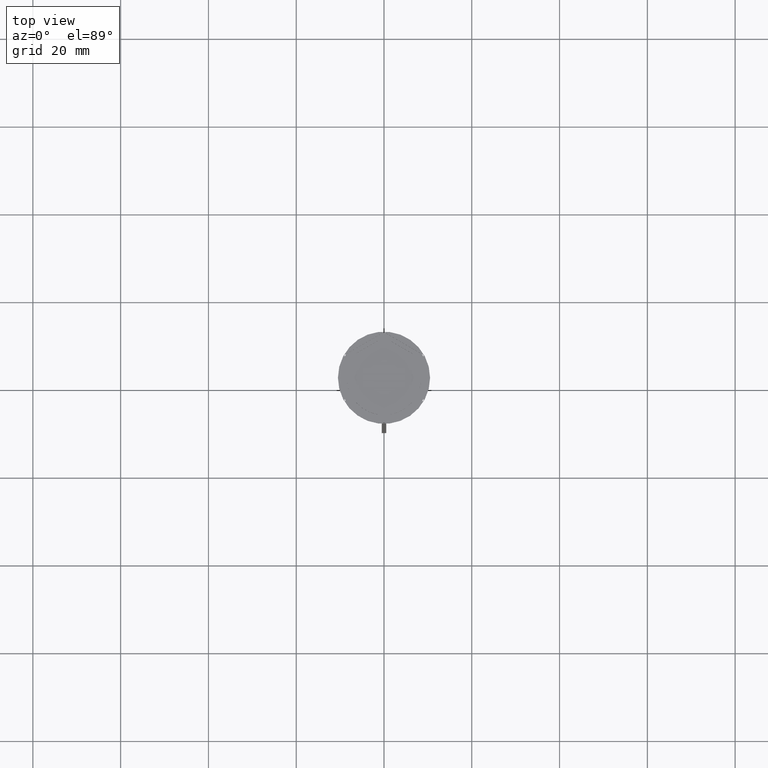
[diagram: clean part render]
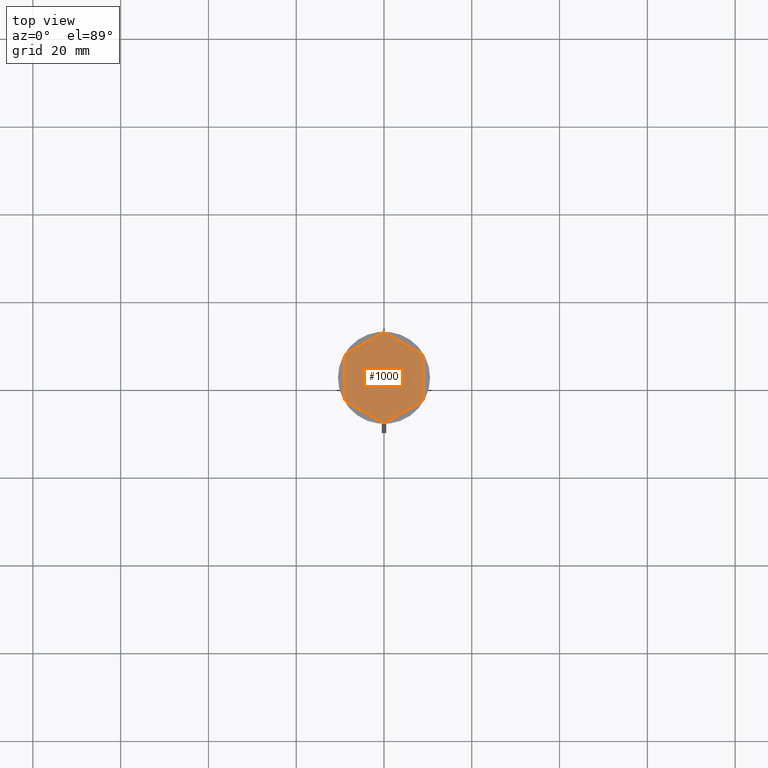
[diagram: same view with one face highlighted and labeled with its STEP entity id]
A machine part, top view. The second image highlights one B-rep face of the part: STEP entity #1000.
In plain terms, the highlighted planar face has unit normal (0, 0, 1).
Its self-contained STEP definition (entity closure, byte-faithful):
#4 = CARTESIAN_POINT ( 'NONE',  ( 0.000000000000000000, 0.000000000000000000, -1.000000000000000000 ) ) ;
#13 = DIRECTION ( 'NONE',  ( 1.000000000000000000, 0.000000000000000000, 0.000000000000000000 ) ) ;
#18 = EDGE_CURVE ( 'NONE', #811, #46, #150, .T. ) ;
#19 = DIRECTION ( 'NONE',  ( -0.8660254037844387076, -0.4999999999999998335, 0.000000000000000000 ) ) ;
#23 = DIRECTION ( 'NONE',  ( 1.000000000000000000, 0.000000000000000000, 0.000000000000000000 ) ) ;
#24 = CIRCLE ( 'NONE', #2146, 8.500000000000000000 ) ;
#30 = DIRECTION ( 'NONE',  ( 0.000000000000000000, 0.000000000000000000, 1.000000000000000000 ) ) ;
#33 = FACE_OUTER_BOUND ( 'NONE', #896, .T. ) ;
#39 = ORIENTED_EDGE ( 'NONE', *, *, #1545, .T. ) ;
#44 = VECTOR ( 'NONE', #1745, 1000.000000000000114 ) ;
#46 = VERTEX_POINT ( 'NONE', #130 ) ;
#47 = LINE ( 'NONE', #2400, #1637 ) ;
#60 = CARTESIAN_POINT ( 'NONE',  ( 0.000000000000000000, 0.000000000000000000, -1.000000000000000000 ) ) ;
#81 = EDGE_CURVE ( 'NONE', #1699, #2413, #805, .T. ) ;
#91 = DIRECTION ( 'NONE',  ( 1.000000000000000000, 8.881784197001252323E-16, 0.000000000000000000 ) ) ;
#112 = AXIS2_PLACEMENT_3D ( 'NONE', #1593, #2374, #815 ) ;
#118 = CARTESIAN_POINT ( 'NONE',  ( 0.000000000000000000, 0.000000000000000000, -1.000000000000000000 ) ) ;
#128 = VECTOR ( 'NONE', #19, 1000.000000000000114 ) ;
#130 = CARTESIAN_POINT ( 'NONE',  ( 8.656921938165297092, -5.394228634059953009, -1.000000000000000000 ) ) ;
#133 = LINE ( 'NONE', #583, #853 ) ;
#137 = VERTEX_POINT ( 'NONE', #2352 ) ;
#140 = ORIENTED_EDGE ( 'NONE', *, *, #1883, .T. ) ;
#142 = CARTESIAN_POINT ( 'NONE',  ( -9.000000000000001776, -4.799999999999988276, -1.000000000000000000 ) ) ;
#150 = CIRCLE ( 'NONE', #1380, 10.19999999999999574 ) ;
#178 = CARTESIAN_POINT ( 'NONE',  ( -6.487468592766553854, 5.492062568640999842, -1.000000000000000888 ) ) ;
#189 = VERTEX_POINT ( 'NONE', #142 ) ;
#203 = PLANE ( 'NONE',  #1348 ) ;
#216 = FACE_BOUND ( 'NONE', #624, .T. ) ;
#236 = VERTEX_POINT ( 'NONE', #1756 ) ;
#242 = EDGE_CURVE ( 'NONE', #2101, #2420, #973, .T. ) ;
#251 = LINE ( 'NONE', #1579, #128 ) ;
#255 = EDGE_CURVE ( 'NONE', #811, #589, #2004, .T. ) ;
#318 = ORIENTED_EDGE ( 'NONE', *, *, #2140, .F. ) ;
#333 = CIRCLE ( 'NONE', #994, 10.19999999999999574 ) ;
#338 = CARTESIAN_POINT ( 'NONE',  ( -8.000000000000000000, -4.618802153517006737, -1.000000000000000888 ) ) ;
#349 = VERTEX_POINT ( 'NONE', #487 ) ;
#350 = CARTESIAN_POINT ( 'NONE',  ( 0.3430780618347050170, 10.19422863405994306, -1.000000000000000000 ) ) ;
#352 = DIRECTION ( 'NONE',  ( 1.000000000000000000, 0.000000000000000000, 0.000000000000000000 ) ) ;
#388 = CARTESIAN_POINT ( 'NONE',  ( 0.000000000000000000, 0.000000000000000000, -1.000000000000000000 ) ) ;
#408 = DIRECTION ( 'NONE',  ( 0.000000000000000000, 1.000000000000000000, 0.000000000000000000 ) ) ;
#411 = VERTEX_POINT ( 'NONE', #921 ) ;
#412 = VECTOR ( 'NONE', #870, 1000.000000000000114 ) ;
#413 = VERTEX_POINT ( 'NONE', #1329 ) ;
#420 = LINE ( 'NONE', #1216, #518 ) ;
#437 = VERTEX_POINT ( 'NONE', #2377 ) ;
#442 = EDGE_LOOP ( 'NONE', ( #1619, #318 ) ) ;
#457 = CARTESIAN_POINT ( 'NONE',  ( -8.000000000000000000, 4.618802153517004072, -1.000000000000000888 ) ) ;
#458 = EDGE_CURVE ( 'NONE', #411, #2347, #1344, .T. ) ;
#478 = AXIS2_PLACEMENT_3D ( 'NONE', #60, #1095, #1052 ) ;
#487 = CARTESIAN_POINT ( 'NONE',  ( -8.500000000000000000, 0.000000000000000000, -1.000000000000000000 ) ) ;
#495 = ORIENTED_EDGE ( 'NONE', *, *, #2441, .F. ) ;
#511 = CARTESIAN_POINT ( 'NONE',  ( 9.000000000000001776, -4.799999999999988276, -1.000000000000000000 ) ) ;
#517 = CARTESIAN_POINT ( 'NONE',  ( 0.000000000000000000, 0.000000000000000000, -1.000000000000000000 ) ) ;
#518 = VECTOR ( 'NONE', #2427, 1000.000000000000000 ) ;
#532 = EDGE_LOOP ( 'NONE', ( #2069, #2106 ) ) ;
#535 = CIRCLE ( 'NONE', #1076, 8.500000000000000000 ) ;
#539 = EDGE_CURVE ( 'NONE', #1699, #795, #47, .T. ) ;
#555 = AXIS2_PLACEMENT_3D ( 'NONE', #642, #1007, #13 ) ;
#559 = CARTESIAN_POINT ( 'NONE',  ( 0.000000000000000000, 0.000000000000000000, -1.000000000000000000 ) ) ;
#583 = CARTESIAN_POINT ( 'NONE',  ( 2.607697573705103160E-15, -10.39230484541326405, -1.000000000000000000 ) ) ;
#584 = DIRECTION ( 'NONE',  ( 0.000000000000000000, 0.000000000000000000, 1.000000000000000000 ) ) ;
#588 = CARTESIAN_POINT ( 'NONE',  ( 9.000000000000001776, 4.799999999999988276, -1.000000000000000000 ) ) ;
#589 = VERTEX_POINT ( 'NONE', #588 ) ;
#598 = EDGE_CURVE ( 'NONE', #236, #795, #1548, .T. ) ;
#612 = FACE_BOUND ( 'NONE', #2510, .T. ) ;
#616 = VERTEX_POINT ( 'NONE', #1599 ) ;
#618 = DIRECTION ( 'NONE',  ( 1.000000000000000000, 0.000000000000000000, 0.000000000000000000 ) ) ;
#624 = EDGE_LOOP ( 'NONE', ( #1192, #1199 ) ) ;
#630 = EDGE_CURVE ( 'NONE', #993, #137, #420, .T. ) ;
#635 = VERTEX_POINT ( 'NONE', #1660 ) ;
#642 = CARTESIAN_POINT ( 'NONE',  ( 0.000000000000000000, 0.000000000000000000, -1.000000000000000000 ) ) ;
#660 = EDGE_CURVE ( 'NONE', #437, #635, #1648, .T. ) ;
#662 = VECTOR ( 'NONE', #879, 1000.000000000000000 ) ;
#675 = EDGE_CURVE ( 'NONE', #635, #349, #1676, .T. ) ;
#683 = VECTOR ( 'NONE', #408, 1000.000000000000000 ) ;
#697 = LINE ( 'NONE', #1851, #2215 ) ;
#713 = CARTESIAN_POINT ( 'NONE',  ( 9.000000000000001776, 5.196152422706632912, -1.000000000000000000 ) ) ;
#791 = CARTESIAN_POINT ( 'NONE',  ( 0.000000000000000000, 0.000000000000000000, -1.000000000000000000 ) ) ;
#795 = VERTEX_POINT ( 'NONE', #936 ) ;
#805 = CIRCLE ( 'NONE', #1141, 10.19999999999999574 ) ;
#809 = VECTOR ( 'NONE', #1198, 1000.000000000000114 ) ;
#811 = VERTEX_POINT ( 'NONE', #511 ) ;
#815 = DIRECTION ( 'NONE',  ( 1.000000000000000000, 0.000000000000000000, 0.000000000000000000 ) ) ;
#818 = DIRECTION ( 'NONE',  ( -0.8660254037844385966, -0.5000000000000001110, 0.000000000000000000 ) ) ;
#853 = VECTOR ( 'NONE', #916, 1000.000000000000000 ) ;
#861 = DIRECTION ( 'NONE',  ( 0.8660254037844384856, 0.5000000000000003331, -0.000000000000000000 ) ) ;
#869 = LINE ( 'NONE', #1913, #662 ) ;
#870 = DIRECTION ( 'NONE',  ( 0.8660254037844387076, -0.4999999999999997224, 0.000000000000000000 ) ) ;
#872 = ORIENTED_EDGE ( 'NONE', *, *, #255, .T. ) ;
#879 = DIRECTION ( 'NONE',  ( 0.000000000000000000, -1.000000000000000000, 0.000000000000000000 ) ) ;
#896 = EDGE_LOOP ( 'NONE', ( #872, #2320, #1408, #2036, #1995, #1687, #1789, #495, #140, #2015, #39, #1690 ) ) ;
#898 = EDGE_LOOP ( 'NONE', ( #1423, #1412 ) ) ;
#916 = DIRECTION ( 'NONE',  ( 0.8660254037844385966, 0.5000000000000001110, 0.000000000000000000 ) ) ;
#920 = ORIENTED_EDGE ( 'NONE', *, *, #242, .F. ) ;
#921 = CARTESIAN_POINT ( 'NONE',  ( 0.3430780618347059052, -10.19422863405994306, -1.000000000000000000 ) ) ;
#925 = EDGE_CURVE ( 'NONE', #2003, #616, #1748, .T. ) ;
#936 = CARTESIAN_POINT ( 'NONE',  ( -8.656921938165297092, 5.394228634059953009, -1.000000000000000000 ) ) ;
#947 = EDGE_CURVE ( 'NONE', #1927, #2292, #1809, .T. ) ;
#951 = AXIS2_PLACEMENT_3D ( 'NONE', #791, #1670, #1252 ) ;
#953 = DIRECTION ( 'NONE',  ( 1.000000000000000000, 0.000000000000000000, 0.000000000000000000 ) ) ;
#973 = CIRCLE ( 'NONE', #555, 8.500000000000000000 ) ;
#975 = AXIS2_PLACEMENT_3D ( 'NONE', #1187, #978, #23 ) ;
#978 = DIRECTION ( 'NONE',  ( -0.000000000000000000, -0.000000000000000000, -1.000000000000000000 ) ) ;
#993 = VERTEX_POINT ( 'NONE', #1381 ) ;
#994 = AXIS2_PLACEMENT_3D ( 'NONE', #1757, #2567, #618 ) ;
#1000 = ADVANCED_FACE ( 'NONE', ( #1969, #1214, #612, #1552, #1984, #216, #33 ), #203, .T. ) ;
#1007 = DIRECTION ( 'NONE',  ( 0.000000000000000000, 0.000000000000000000, 1.000000000000000000 ) ) ;
#1028 = DIRECTION ( 'NONE',  ( 1.000000000000000000, 0.000000000000000000, -0.000000000000000000 ) ) ;
#1052 = DIRECTION ( 'NONE',  ( 1.000000000000000000, 0.000000000000000000, 0.000000000000000000 ) ) ;
#1063 = CIRCLE ( 'NONE', #1387, 10.19999999999999574 ) ;
#1072 = CARTESIAN_POINT ( 'NONE',  ( 0.000000000000000000, 0.000000000000000000, -1.000000000000000000 ) ) ;
#1076 = AXIS2_PLACEMENT_3D ( 'NONE', #1072, #2084, #2294 ) ;
#1095 = DIRECTION ( 'NONE',  ( 0.000000000000000000, 0.000000000000000000, 1.000000000000000000 ) ) ;
#1141 = AXIS2_PLACEMENT_3D ( 'NONE', #118, #1654, #1293 ) ;
#1142 = CARTESIAN_POINT ( 'NONE',  ( -6.487468592766552078, -5.492062568641001619, -1.000000000000000888 ) ) ;
#1187 = CARTESIAN_POINT ( 'NONE',  ( 0.000000000000000000, 0.000000000000000000, -1.000000000000000000 ) ) ;
#1192 = ORIENTED_EDGE ( 'NONE', *, *, #947, .F. ) ;
#1198 = DIRECTION ( 'NONE',  ( 0.8660254037844385966, -0.4999999999999999445, 0.000000000000000000 ) ) ;
#1199 = ORIENTED_EDGE ( 'NONE', *, *, #1736, .F. ) ;
#1209 = EDGE_CURVE ( 'NONE', #413, #589, #1063, .T. ) ;
#1214 = FACE_BOUND ( 'NONE', #898, .T. ) ;
#1216 = CARTESIAN_POINT ( 'NONE',  ( 7.999999999999998224, -4.618802153517008513, -1.000000000000000888 ) ) ;
#1239 = CARTESIAN_POINT ( 'NONE',  ( -0.3430780618347024080, -10.19422863405994306, -1.000000000000000000 ) ) ;
#1248 = VERTEX_POINT ( 'NONE', #1142 ) ;
#1252 = DIRECTION ( 'NONE',  ( 1.000000000000000000, 0.000000000000000000, 0.000000000000000000 ) ) ;
#1258 = CARTESIAN_POINT ( 'NONE',  ( 1.512531407233448366, 8.364343891910017703, -1.000000000000000888 ) ) ;
#1293 = DIRECTION ( 'NONE',  ( 1.000000000000000000, 1.598721155460225418E-14, 0.000000000000000000 ) ) ;
#1294 = EDGE_CURVE ( 'NONE', #413, #2413, #2326, .T. ) ;
#1317 = CARTESIAN_POINT ( 'NONE',  ( -8.656921938165295316, -5.394228634059957450, -1.000000000000000000 ) ) ;
#1320 = DIRECTION ( 'NONE',  ( -0.8660254037844385966, 0.5000000000000000000, 0.000000000000000000 ) ) ;
#1329 = CARTESIAN_POINT ( 'NONE',  ( 8.656921938165297092, 5.394228634059953897, -1.000000000000000000 ) ) ;
#1330 = EDGE_CURVE ( 'NONE', #616, #2003, #2028, .T. ) ;
#1333 = CARTESIAN_POINT ( 'NONE',  ( 0.000000000000000000, 0.000000000000000000, -1.000000000000000000 ) ) ;
#1344 = CIRCLE ( 'NONE', #2316, 10.19999999999999574 ) ;
#1348 = AXIS2_PLACEMENT_3D ( 'NONE', #388, #584, #1028 ) ;
#1356 = DIRECTION ( 'NONE',  ( 1.000000000000000000, 0.000000000000000000, 0.000000000000000000 ) ) ;
#1363 = ORIENTED_EDGE ( 'NONE', *, *, #675, .F. ) ;
#1380 = AXIS2_PLACEMENT_3D ( 'NONE', #1468, #1664, #91 ) ;
#1381 = CARTESIAN_POINT ( 'NONE',  ( 8.000000000000000000, 2.872281323269014752, -1.000000000000000888 ) ) ;
#1383 = EDGE_CURVE ( 'NONE', #137, #993, #24, .T. ) ;
#1387 = AXIS2_PLACEMENT_3D ( 'NONE', #517, #1486, #1521 ) ;
#1389 = ORIENTED_EDGE ( 'NONE', *, *, #660, .F. ) ;
#1408 = ORIENTED_EDGE ( 'NONE', *, *, #1294, .T. ) ;
#1412 = ORIENTED_EDGE ( 'NONE', *, *, #630, .F. ) ;
#1423 = ORIENTED_EDGE ( 'NONE', *, *, #1383, .F. ) ;
#1430 = CARTESIAN_POINT ( 'NONE',  ( -0.3430780618347059052, 10.19422863405994306, -1.000000000000000000 ) ) ;
#1436 = DIRECTION ( 'NONE',  ( 0.000000000000000000, 1.000000000000000000, 0.000000000000000000 ) ) ;
#1468 = CARTESIAN_POINT ( 'NONE',  ( 0.000000000000000000, 0.000000000000000000, -1.000000000000000000 ) ) ;
#1486 = DIRECTION ( 'NONE',  ( -0.000000000000000000, -0.000000000000000000, -1.000000000000000000 ) ) ;
#1521 = DIRECTION ( 'NONE',  ( 1.000000000000000000, 0.000000000000000000, 0.000000000000000000 ) ) ;
#1529 = ORIENTED_EDGE ( 'NONE', *, *, #2237, .F. ) ;
#1533 = CARTESIAN_POINT ( 'NONE',  ( 6.487468592766547637, -5.492062568641006060, -1.000000000000000888 ) ) ;
#1545 = EDGE_CURVE ( 'NONE', #411, #46, #133, .T. ) ;
#1548 = CIRCLE ( 'NONE', #975, 10.19999999999999574 ) ;
#1552 = FACE_BOUND ( 'NONE', #442, .T. ) ;
#1563 = CARTESIAN_POINT ( 'NONE',  ( -1.512531407233451475, 8.364343891910017703, -1.000000000000000888 ) ) ;
#1579 = CARTESIAN_POINT ( 'NONE',  ( -8.673617379884035472E-16, -9.237604307034013473, -1.000000000000000888 ) ) ;
#1593 = CARTESIAN_POINT ( 'NONE',  ( 0.000000000000000000, 0.000000000000000000, -1.000000000000000000 ) ) ;
#1599 = CARTESIAN_POINT ( 'NONE',  ( 6.487468592766552078, 5.492062568641001619, -1.000000000000000888 ) ) ;
#1619 = ORIENTED_EDGE ( 'NONE', *, *, #1787, .F. ) ;
#1637 = VECTOR ( 'NONE', #818, 1000.000000000000000 ) ;
#1648 = LINE ( 'NONE', #457, #2482 ) ;
#1654 = DIRECTION ( 'NONE',  ( -0.000000000000000000, -0.000000000000000000, -1.000000000000000000 ) ) ;
#1660 = CARTESIAN_POINT ( 'NONE',  ( -8.000000000000000000, 2.872281323269016085, -1.000000000000000888 ) ) ;
#1664 = DIRECTION ( 'NONE',  ( -0.000000000000000000, -0.000000000000000000, -1.000000000000000000 ) ) ;
#1670 = DIRECTION ( 'NONE',  ( 0.000000000000000000, 0.000000000000000000, 1.000000000000000000 ) ) ;
#1676 = CIRCLE ( 'NONE', #478, 8.500000000000000000 ) ;
#1681 = VECTOR ( 'NONE', #1320, 1000.000000000000227 ) ;
#1687 = ORIENTED_EDGE ( 'NONE', *, *, #598, .F. ) ;
#1690 = ORIENTED_EDGE ( 'NONE', *, *, #18, .F. ) ;
#1697 = CIRCLE ( 'NONE', #951, 8.500000000000000000 ) ;
#1699 = VERTEX_POINT ( 'NONE', #1430 ) ;
#1736 = EDGE_CURVE ( 'NONE', #2292, #1927, #697, .T. ) ;
#1745 = DIRECTION ( 'NONE',  ( -0.8660254037844385966, 0.4999999999999999445, 0.000000000000000000 ) ) ;
#1748 = LINE ( 'NONE', #2303, #809 ) ;
#1756 = CARTESIAN_POINT ( 'NONE',  ( -9.000000000000001776, 4.799999999999988276, -1.000000000000000000 ) ) ;
#1757 = CARTESIAN_POINT ( 'NONE',  ( 0.000000000000000000, 0.000000000000000000, -1.000000000000000000 ) ) ;
#1787 = EDGE_CURVE ( 'NONE', #1248, #1836, #535, .T. ) ;
#1789 = ORIENTED_EDGE ( 'NONE', *, *, #2370, .T. ) ;
#1809 = CIRCLE ( 'NONE', #112, 8.500000000000000000 ) ;
#1836 = VERTEX_POINT ( 'NONE', #1897 ) ;
#1851 = CARTESIAN_POINT ( 'NONE',  ( 8.673617379884035472E-16, 9.237604307034013473, -1.000000000000000888 ) ) ;
#1883 = EDGE_CURVE ( 'NONE', #2537, #2347, #2301, .T. ) ;
#1897 = CARTESIAN_POINT ( 'NONE',  ( -1.512531407233448366, -8.364343891910017703, -1.000000000000000888 ) ) ;
#1913 = CARTESIAN_POINT ( 'NONE',  ( -9.000000000000001776, 5.196152422706632024, -1.000000000000000000 ) ) ;
#1914 = CARTESIAN_POINT ( 'NONE',  ( -9.000000000000001776, -5.196152422706632912, -1.000000000000000000 ) ) ;
#1927 = VERTEX_POINT ( 'NONE', #1563 ) ;
#1969 = FACE_BOUND ( 'NONE', #532, .T. ) ;
#1984 = FACE_BOUND ( 'NONE', #2426, .T. ) ;
#1995 = ORIENTED_EDGE ( 'NONE', *, *, #539, .T. ) ;
#2003 = VERTEX_POINT ( 'NONE', #1258 ) ;
#2004 = LINE ( 'NONE', #2044, #683 ) ;
#2015 = ORIENTED_EDGE ( 'NONE', *, *, #458, .F. ) ;
#2028 = CIRCLE ( 'NONE', #2114, 8.500000000000000000 ) ;
#2036 = ORIENTED_EDGE ( 'NONE', *, *, #81, .F. ) ;
#2044 = CARTESIAN_POINT ( 'NONE',  ( 9.000000000000001776, -5.196152422706632024, -1.000000000000000000 ) ) ;
#2069 = ORIENTED_EDGE ( 'NONE', *, *, #1330, .F. ) ;
#2084 = DIRECTION ( 'NONE',  ( 0.000000000000000000, 0.000000000000000000, 1.000000000000000000 ) ) ;
#2101 = VERTEX_POINT ( 'NONE', #2183 ) ;
#2106 = ORIENTED_EDGE ( 'NONE', *, *, #925, .F. ) ;
#2114 = AXIS2_PLACEMENT_3D ( 'NONE', #1333, #2142, #352 ) ;
#2122 = ORIENTED_EDGE ( 'NONE', *, *, #2329, .F. ) ;
#2140 = EDGE_CURVE ( 'NONE', #1836, #1248, #2532, .T. ) ;
#2142 = DIRECTION ( 'NONE',  ( 0.000000000000000000, 0.000000000000000000, 1.000000000000000000 ) ) ;
#2146 = AXIS2_PLACEMENT_3D ( 'NONE', #4, #30, #1356 ) ;
#2148 = DIRECTION ( 'NONE',  ( -0.000000000000000000, -0.000000000000000000, -1.000000000000000000 ) ) ;
#2183 = CARTESIAN_POINT ( 'NONE',  ( 1.512531407233452363, -8.364343891910017703, -1.000000000000000888 ) ) ;
#2215 = VECTOR ( 'NONE', #861, 1000.000000000000114 ) ;
#2237 = EDGE_CURVE ( 'NONE', #2420, #2101, #251, .T. ) ;
#2292 = VERTEX_POINT ( 'NONE', #178 ) ;
#2294 = DIRECTION ( 'NONE',  ( 1.000000000000000000, 0.000000000000000000, 0.000000000000000000 ) ) ;
#2301 = LINE ( 'NONE', #1914, #412 ) ;
#2303 = CARTESIAN_POINT ( 'NONE',  ( 8.000000000000000000, 4.618802153517006737, -1.000000000000000888 ) ) ;
#2316 = AXIS2_PLACEMENT_3D ( 'NONE', #559, #2148, #953 ) ;
#2320 = ORIENTED_EDGE ( 'NONE', *, *, #1209, .F. ) ;
#2326 = LINE ( 'NONE', #713, #1681 ) ;
#2329 = EDGE_CURVE ( 'NONE', #349, #437, #1697, .T. ) ;
#2347 = VERTEX_POINT ( 'NONE', #1239 ) ;
#2352 = CARTESIAN_POINT ( 'NONE',  ( 8.000000000000000000, -2.872281323269017417, -1.000000000000000888 ) ) ;
#2370 = EDGE_CURVE ( 'NONE', #236, #189, #869, .T. ) ;
#2374 = DIRECTION ( 'NONE',  ( 0.000000000000000000, 0.000000000000000000, 1.000000000000000000 ) ) ;
#2377 = CARTESIAN_POINT ( 'NONE',  ( -8.000000000000000000, -2.872281323269016085, -1.000000000000000888 ) ) ;
#2400 = CARTESIAN_POINT ( 'NONE',  ( 0.000000000000000000, 10.39230484541326582, -1.000000000000000000 ) ) ;
#2413 = VERTEX_POINT ( 'NONE', #350 ) ;
#2420 = VERTEX_POINT ( 'NONE', #1533 ) ;
#2426 = EDGE_LOOP ( 'NONE', ( #1363, #1389, #2122 ) ) ;
#2427 = DIRECTION ( 'NONE',  ( -1.877893248421449036E-16, -1.000000000000000000, 0.000000000000000000 ) ) ;
#2441 = EDGE_CURVE ( 'NONE', #2537, #189, #333, .T. ) ;
#2482 = VECTOR ( 'NONE', #1436, 1000.000000000000000 ) ;
#2510 = EDGE_LOOP ( 'NONE', ( #920, #1529 ) ) ;
#2532 = LINE ( 'NONE', #338, #44 ) ;
#2537 = VERTEX_POINT ( 'NONE', #1317 ) ;
#2567 = DIRECTION ( 'NONE',  ( -0.000000000000000000, -0.000000000000000000, -1.000000000000000000 ) ) ;